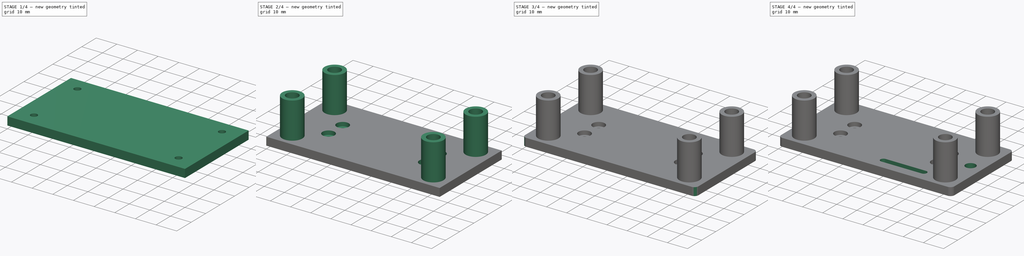
[diagram: build sequence overview — one tinted view per stage of 4, left to right]
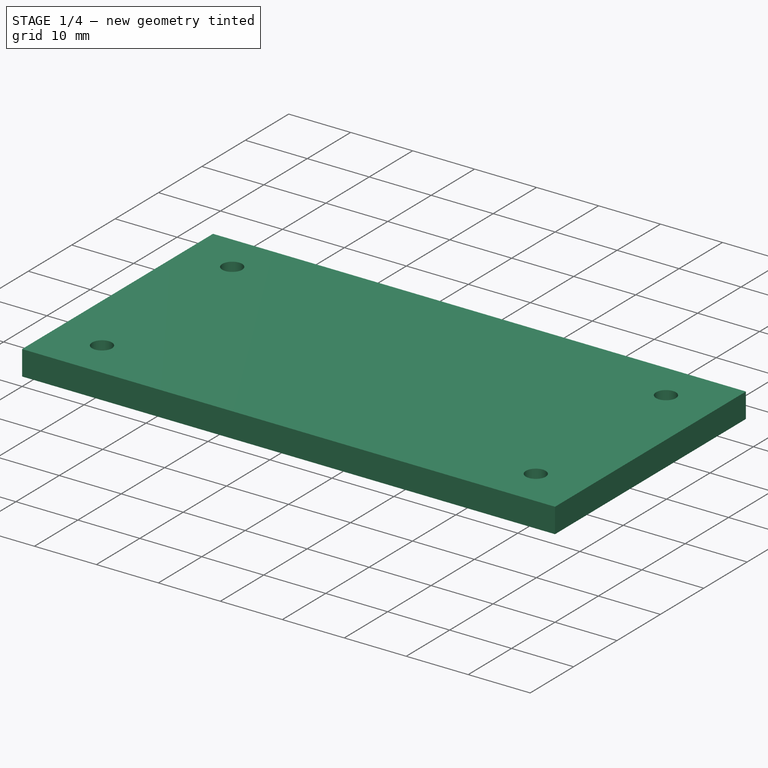
[diagram: stage 1 of 4 — iso view after this stage's code; geometry added in this stage tinted green]
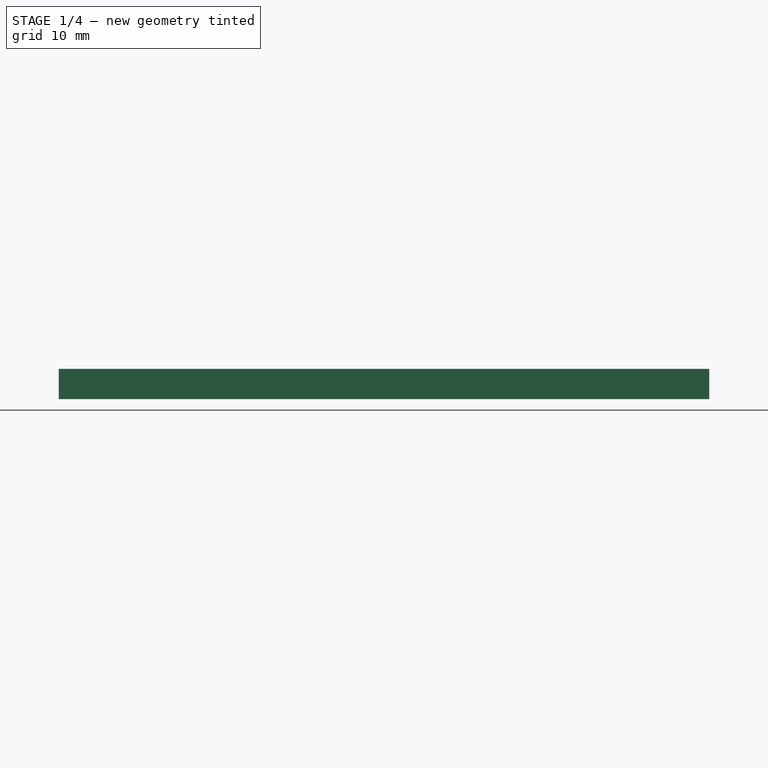
[diagram: stage 1 of 4 — front view after this stage's code; geometry added in this stage tinted green]
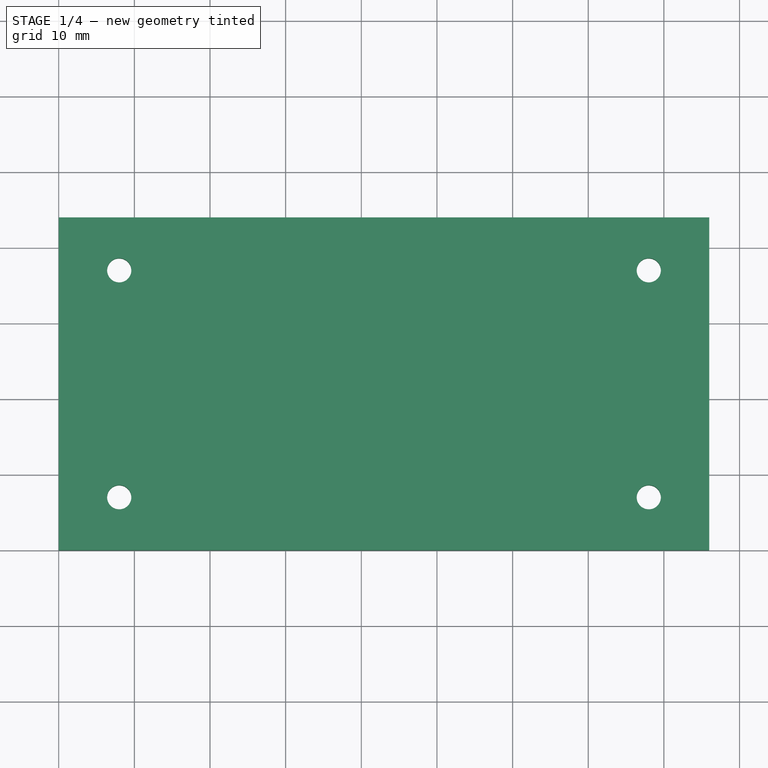
[diagram: stage 1 of 4 — top view after this stage's code; geometry added in this stage tinted green]
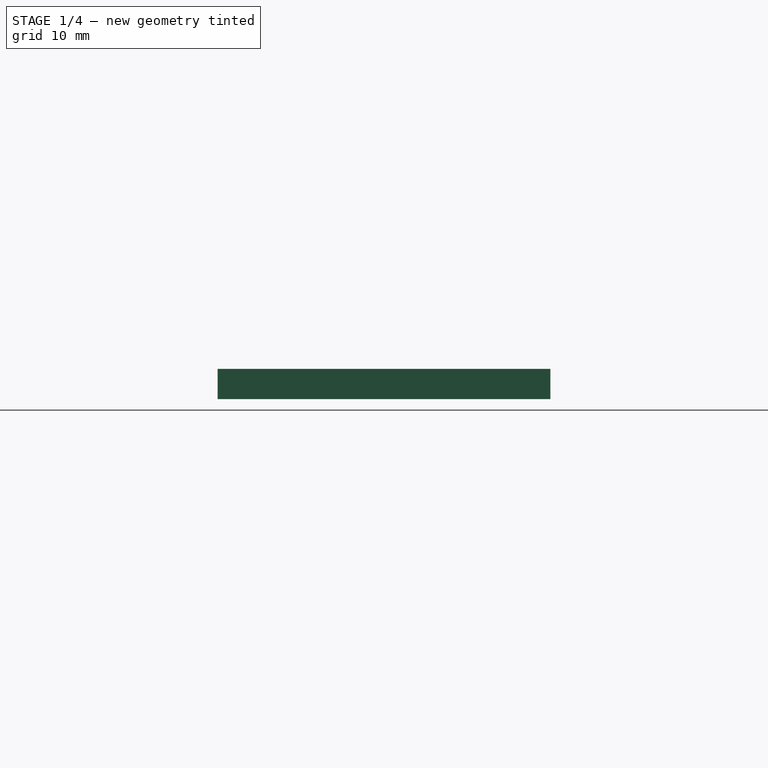
[diagram: stage 1 of 4 — right view after this stage's code; geometry added in this stage tinted green]
FCSTD DOCUMENT  (FreeCAD 0.16R6706 (Git))
Label: iROB-EA_Camara_Soporte_Robot
License: All rights reserved
LicenseURL: http://en.wikipedia.org/wiki/All_rights_reserved
objects: Sketcher::SketchObject×6, PartDesign::Pocket×4, PartDesign::Fillet×4, PartDesign::Pad×2
note: 22 computed .brp shape members not serialized (recipe doc carries the construction recipe); baked Part::Feature solids carry a one-line shape summary decoded from their .brp

FEATURE [Sketcher::SketchObject] Sketch  label="Base"
  sketch-geometry (4):
    g0: LineSegment StartX=0 StartY=44 StartZ=0 EndX=86 EndY=44 EndZ=0
    g1: LineSegment StartX=86 StartY=44 StartZ=0 EndX=86 EndY=0 EndZ=0
    g2: LineSegment StartX=86 StartY=0 StartZ=0 EndX=0 EndY=0 EndZ=0
    g3: LineSegment StartX=0 StartY=0 StartZ=0 EndX=0 EndY=44 EndZ=0
  constraints (11):
    c: Coincident(g0,g1)
    c: Coincident(g1,g2)
    c: Coincident(g2,g3)
    c: Coincident(g3,g0)
    c: Horizontal(g0)
    c: Horizontal(g2)
    c: Vertical(g1)
    c: Vertical(g3)
    c: DistanceY(g3,g3) = 44
    c: DistanceX(g2,g2) = 86
    c: Coincident(g2,g-1)
FEATURE [PartDesign::Pad] Pad
  Length = 4
  Length2 = 100
  Sketch = -> Sketch
  Type = 0
FEATURE [Sketcher::SketchObject] Sketch001  label="Taladros_Base"
  Placement = pos=(0,0,4) rot=(0,0,1;0rad)
  Support = -> Pad [Face6]
  sketch-geometry (4):
    g0: Circle CenterX=8 CenterY=37 CenterZ=0 NormalX=0 NormalY=0 NormalZ=1 Radius=1.6
    g1: Circle CenterX=8 CenterY=7 CenterZ=0 NormalX=0 NormalY=0 NormalZ=1 Radius=1.6
    g2: Circle CenterX=78 CenterY=37 CenterZ=0 NormalX=0 NormalY=0 NormalZ=1 Radius=1.6
    g3: Circle CenterX=78 CenterY=7 CenterZ=0 NormalX=0 NormalY=0 NormalZ=1 Radius=1.6
  constraints (12):
    c: Radius(g0) = 1.6
    c: Radius(g1) = 1.6
    c: DistanceX(g0,g1) = 0
    c: DistanceY(g1,g0) = 30
    c: Radius(g2) = 1.6
    c: Radius(g3) = 1.6
    c: DistanceY(g2,g0) = 0
    c: DistanceX(g3,g2) = 0
    c: DistanceX(g0,g2) = 70
    c: DistanceY(g1,g3) = 0
    c: DistanceY(g-1,g0) = 37
    c: DistanceX(g-1,g0) = 8
FEATURE [PartDesign::Pocket] Pocket
  Length = 5
  Sketch = -> Sketch001
  Type = 0
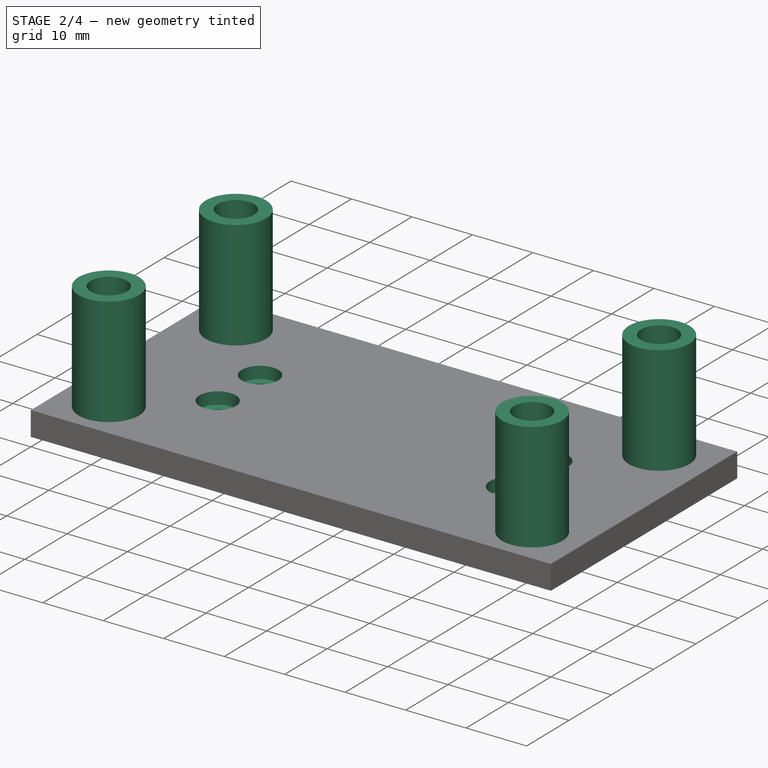
[diagram: stage 2 of 4 — iso view after this stage's code; geometry added in this stage tinted green]
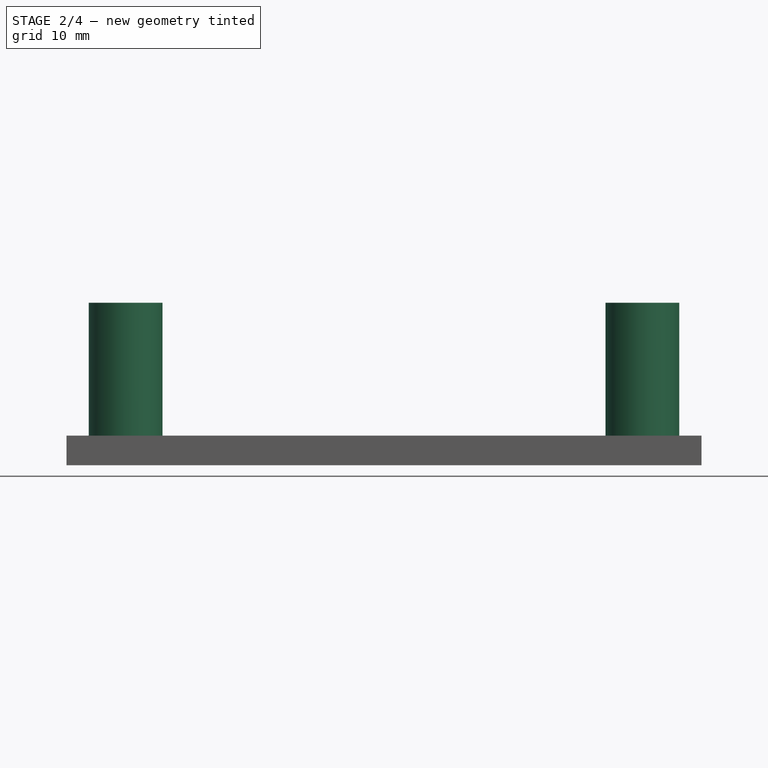
[diagram: stage 2 of 4 — front view after this stage's code; geometry added in this stage tinted green]
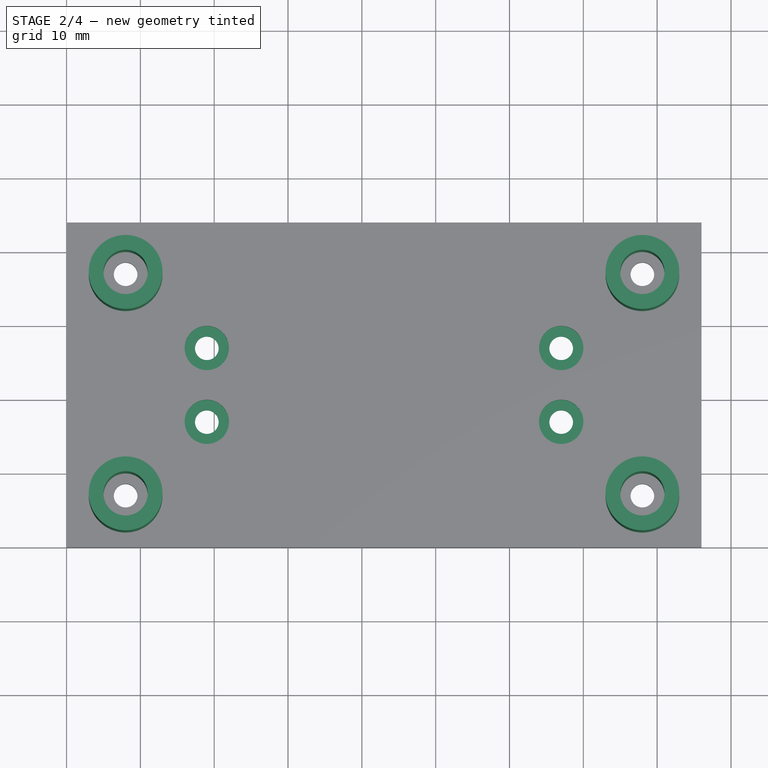
[diagram: stage 2 of 4 — top view after this stage's code; geometry added in this stage tinted green]
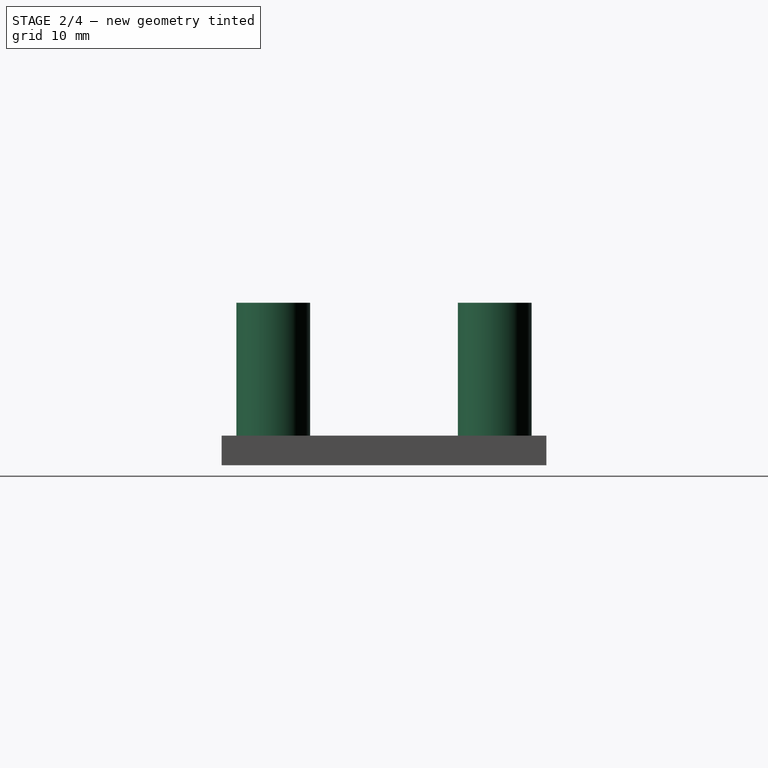
[diagram: stage 2 of 4 — right view after this stage's code; geometry added in this stage tinted green]
FEATURE [Sketcher::SketchObject] Sketch002  label="Taladros_Base_Contorno"
  Placement = pos=(0,0,4) rot=(0,0,1;0rad)
  Support = -> Pocket [Face5]
  sketch-geometry (8):
    g0: Circle CenterX=8 CenterY=7 CenterZ=0 NormalX=0 NormalY=0 NormalZ=1 Radius=3
    g1: Circle CenterX=8 CenterY=7 CenterZ=0 NormalX=0 NormalY=0 NormalZ=1 Radius=5
    g2: Circle CenterX=8 CenterY=37 CenterZ=0 NormalX=0 NormalY=0 NormalZ=1 Radius=3
    g3: Circle CenterX=8 CenterY=37 CenterZ=0 NormalX=0 NormalY=0 NormalZ=1 Radius=5
    g4: Circle CenterX=78 CenterY=37 CenterZ=0 NormalX=0 NormalY=0 NormalZ=1 Radius=3
    g5: Circle CenterX=78 CenterY=37 CenterZ=0 NormalX=0 NormalY=0 NormalZ=1 Radius=5
    g6: Circle CenterX=78 CenterY=7 CenterZ=0 NormalX=0 NormalY=0 NormalZ=1 Radius=3
    g7: Circle CenterX=78 CenterY=7 CenterZ=0 NormalX=0 NormalY=0 NormalZ=1 Radius=5
  constraints (20):
    c: Radius(g0) = 3
    c: Radius(g1) = 5
    c: Coincident(g1,g0)
    c: Radius(g2) = 3
    c: Radius(g3) = 5
    c: Coincident(g2,g3)
    c: DistanceX(g2,g0) = 0
    c: DistanceY(g0,g2) = 30
    c: Radius(g4) = 3
    c: Radius(g5) = 5
    c: Coincident(g5,g4)
    c: Radius(g6) = 3
    c: Radius(g7) = 5
    c: Coincident(g6,g7)
    c: DistanceX(g6,g4) = 0
    c: DistanceY(g6,g0) = 0
    c: DistanceY(g6,g4) = 30
    c: DistanceX(g0,g6) = 70
    c: DistanceX(g-1,g0) = 8
    c: DistanceY(g-1,g2) = 37
FEATURE [PartDesign::Pad] Pad001
  Length = 18
  Length2 = 100
  Sketch = -> Sketch002
  Type = 0
FEATURE [Sketcher::SketchObject] Sketch003  label="Taladros_Servo_1"
  Placement = pos=(0,0,0) rot=(1,0,0;3.14159rad)
  Support = -> Pad001 [Face4]
  sketch-geometry (4):
    g0: Circle CenterX=19 CenterY=-17 CenterZ=0 NormalX=0 NormalY=0 NormalZ=1 Radius=1.6
    g1: Circle CenterX=67 CenterY=-17 CenterZ=0 NormalX=0 NormalY=0 NormalZ=1 Radius=1.6
    g2: Circle CenterX=67 CenterY=-27 CenterZ=0 NormalX=0 NormalY=0 NormalZ=1 Radius=1.6
    g3: Circle CenterX=19 CenterY=-27 CenterZ=0 NormalX=0 NormalY=0 NormalZ=1 Radius=1.6
  constraints (12):
    c: Radius(g0) = 1.6
    c: Radius(g1) = 1.6
    c: DistanceY(g1,g0) = 0
    c: DistanceX(g0,g1) = 48
    c: Radius(g2) = 1.6
    c: Radius(g3) = 1.6
    c: DistanceY(g2,g3) = 0
    c: DistanceX(g3,g2) = 48
    c: DistanceY(g2,g1) = 10
    c: DistanceX(g0,g3) = 0
    c: DistanceY(g0,g-1) = 17
    c: DistanceX(g-1,g0) = 19
FEATURE [PartDesign::Pocket] Pocket001
  Length = 5
  Sketch = -> Sketch003
  Type = 0
FEATURE [Sketcher::SketchObject] Sketch004  label="Taladros_Servo_2"
  Placement = pos=(0,0,4) rot=(0,0,1;0rad)
  Support = -> Pocket001 [Face5]
  sketch-geometry (4):
    g0: Circle CenterX=19 CenterY=27 CenterZ=0 NormalX=0 NormalY=0 NormalZ=1 Radius=3
    g1: Circle CenterX=19 CenterY=17 CenterZ=0 NormalX=0 NormalY=0 NormalZ=1 Radius=3
    g2: Circle CenterX=67 CenterY=27 CenterZ=0 NormalX=0 NormalY=0 NormalZ=1 Radius=3
    g3: Circle CenterX=67 CenterY=17 CenterZ=0 NormalX=0 NormalY=0 NormalZ=1 Radius=3
  constraints (12):
    c: Radius(g0) = 3
    c: Radius(g1) = 3
    c: DistanceX(g1,g0) = 0
    c: DistanceY(g1,g0) = 10
    c: Radius(g3) = 3
    c: Radius(g2) = 3
    c: DistanceX(g2,g3) = 0
    c: DistanceY(g2,g0) = 0
    c: DistanceX(g0,g2) = 48
    c: DistanceY(g3,g2) = 10
    c: DistanceX(g-1,g1) = 19
    c: DistanceY(g-1,g1) = 17
FEATURE [PartDesign::Pocket] Pocket002
  Length = 2
  Sketch = -> Sketch004
  Type = 0
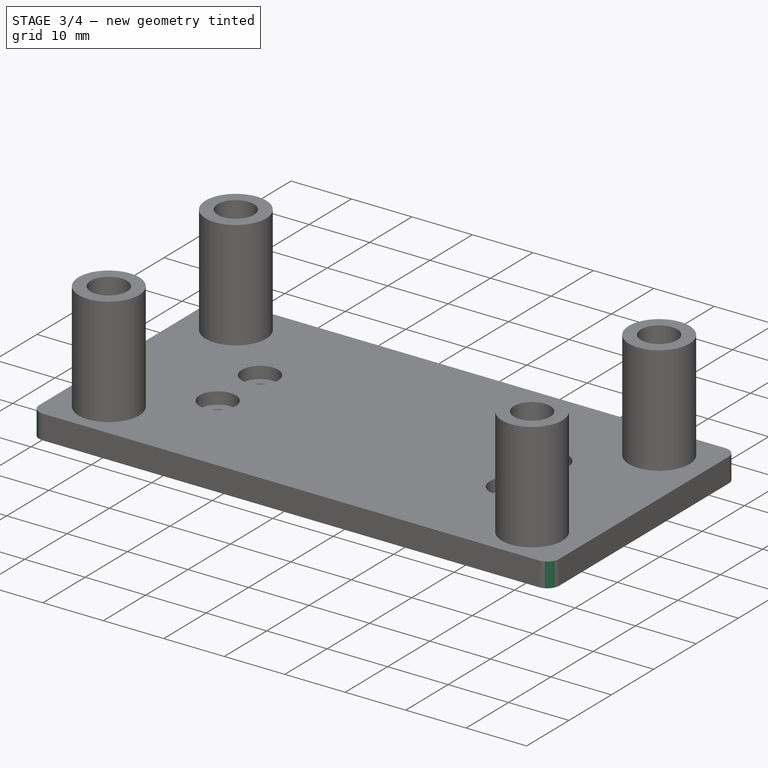
[diagram: stage 3 of 4 — iso view after this stage's code; geometry added in this stage tinted green]
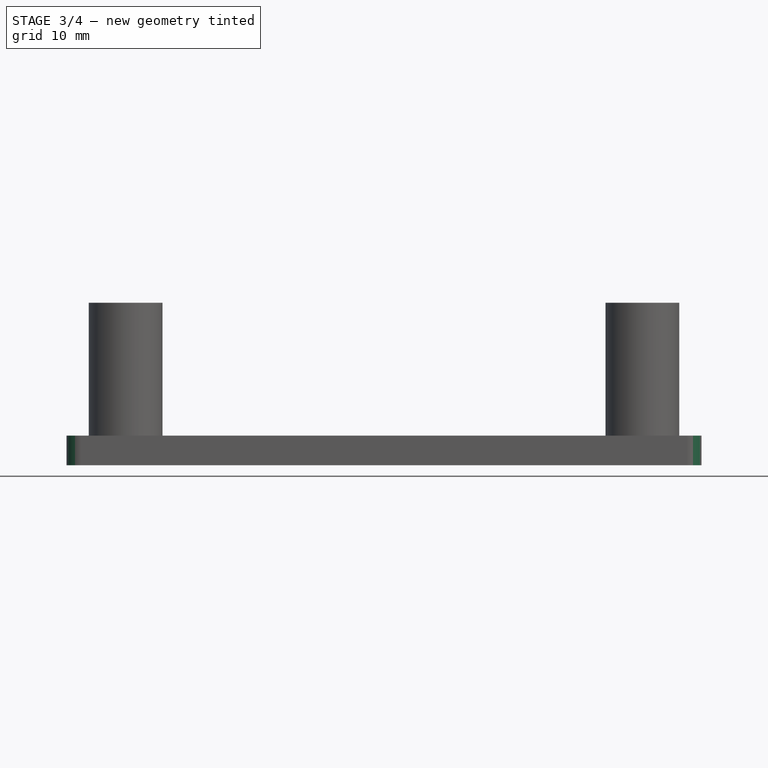
[diagram: stage 3 of 4 — front view after this stage's code; geometry added in this stage tinted green]
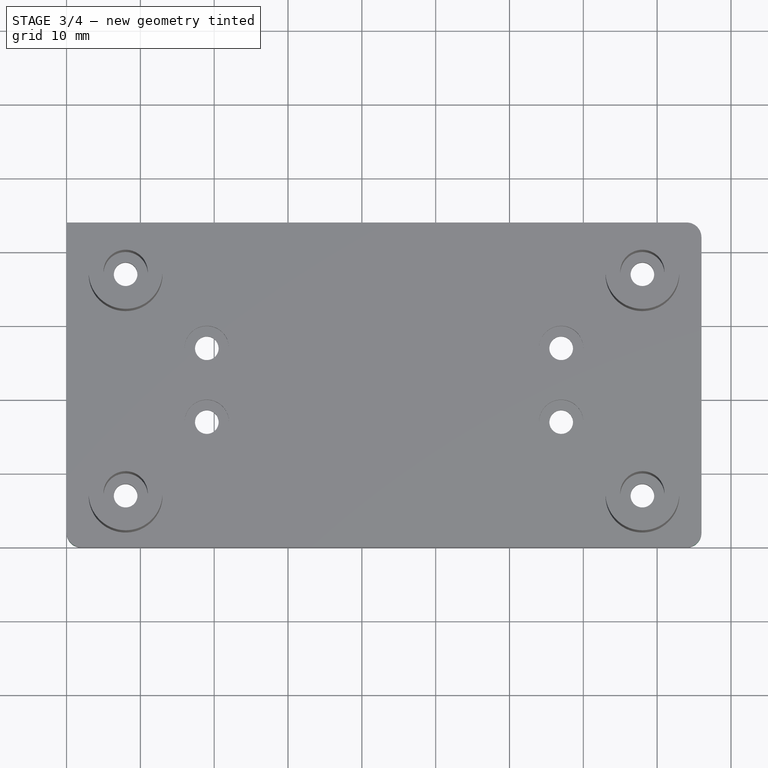
[diagram: stage 3 of 4 — top view after this stage's code; geometry added in this stage tinted green]
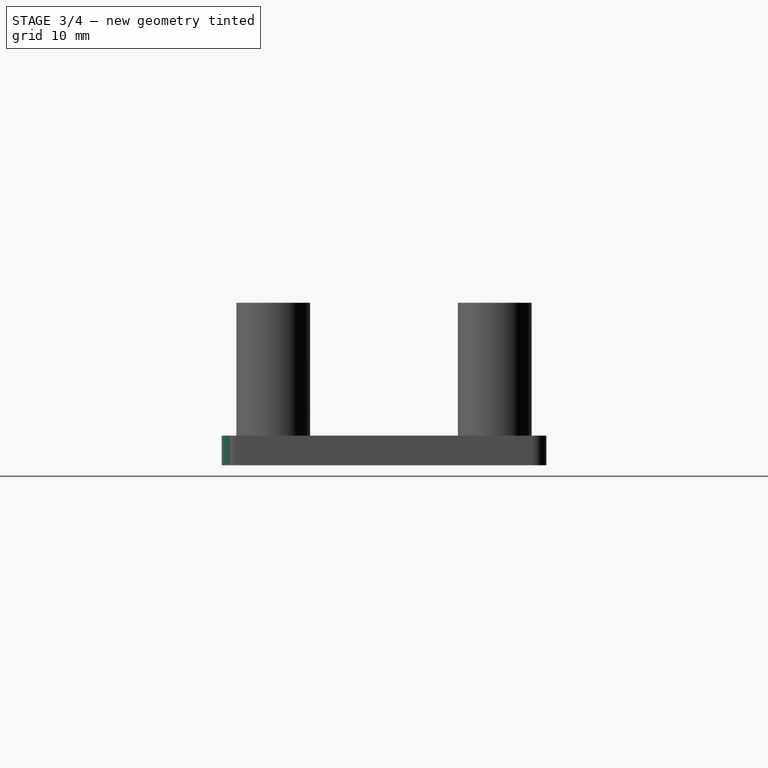
[diagram: stage 3 of 4 — right view after this stage's code; geometry added in this stage tinted green]
FEATURE [PartDesign::Fillet] Fillet
  Base = -> Pocket002 [Edge2]
  Radius = 2
FEATURE [PartDesign::Fillet] Fillet001
  Base = -> Fillet [Edge31]
  Radius = 2
FEATURE [PartDesign::Fillet] Fillet002
  Base = -> Fillet001 [Edge22]
  Radius = 2
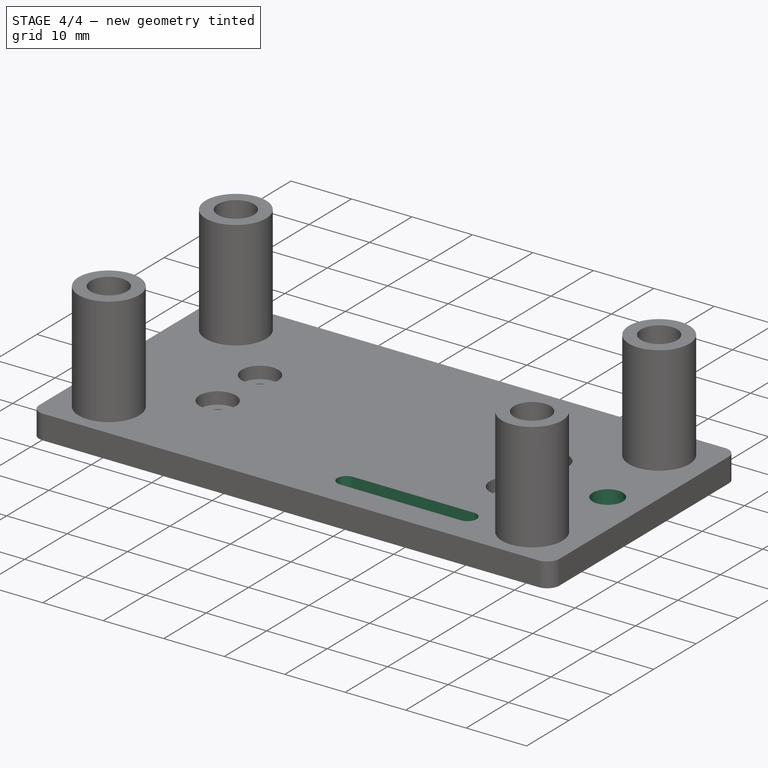
[diagram: stage 4 of 4 — iso view after this stage's code; geometry added in this stage tinted green]
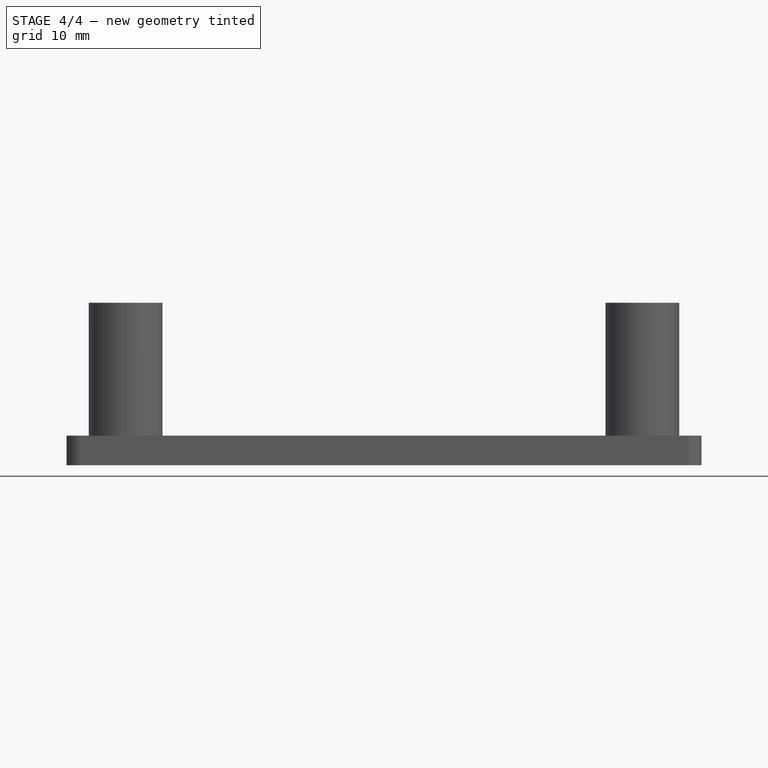
[diagram: stage 4 of 4 — front view after this stage's code; geometry added in this stage tinted green]
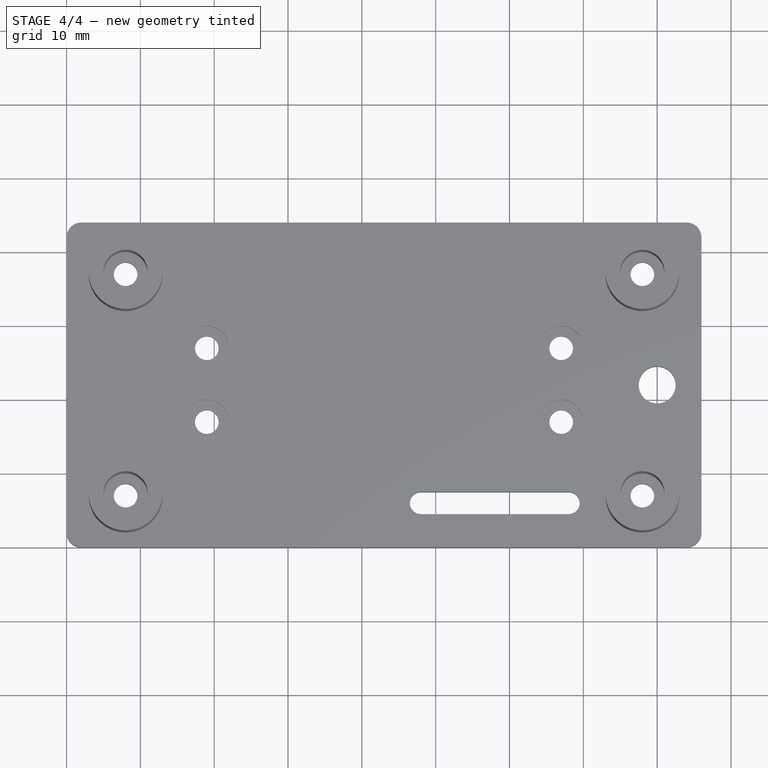
[diagram: stage 4 of 4 — top view after this stage's code; geometry added in this stage tinted green]
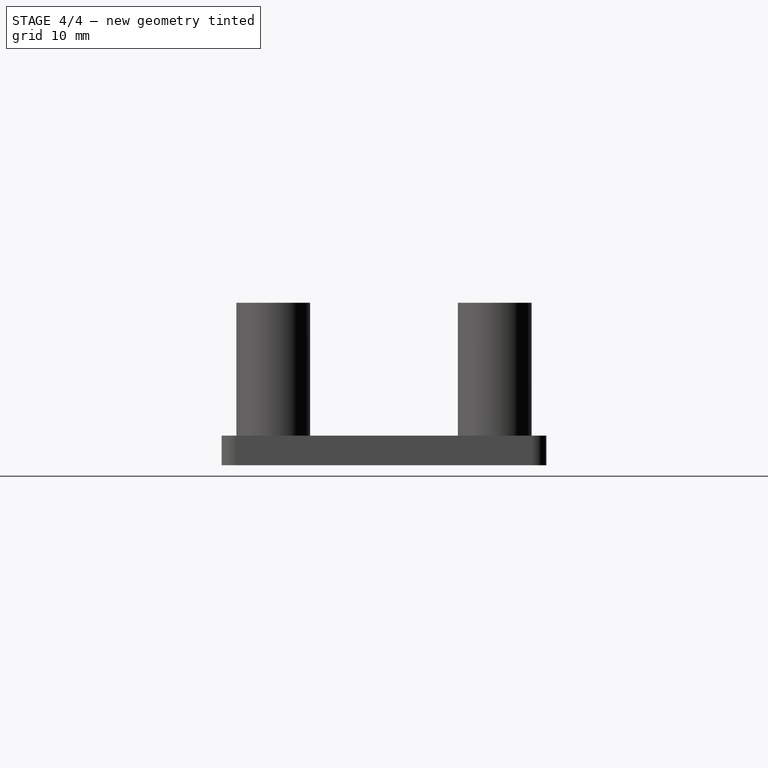
[diagram: stage 4 of 4 — right view after this stage's code; geometry added in this stage tinted green]
FEATURE [PartDesign::Fillet] Fillet003
  Base = -> Fillet002 [Edge23]
  Radius = 2
FEATURE [Sketcher::SketchObject] Sketch006  label="Ranuras_Cables"
  Placement = pos=(0,0,0) rot=(1,0,0;3.14159rad)
  Support = -> Fillet003 [Face1]
  sketch-geometry (5):
    g0: Circle CenterX=80 CenterY=-22 CenterZ=0 NormalX=0 NormalY=0 NormalZ=1 Radius=2.5
    g1: ArcOfCircle CenterX=48 CenterY=-6 CenterZ=0 NormalX=0 NormalY=0 NormalZ=1 Radius=1.5 StartAngle=1.5708 EndAngle=4.71239
    g2: ArcOfCircle CenterX=68 CenterY=-6 CenterZ=0 NormalX=0 NormalY=0 NormalZ=1 Radius=1.5 StartAngle=4.71239 EndAngle=7.85398
    g3: LineSegment StartX=48 StartY=-7.5 StartZ=0 EndX=68 EndY=-7.5 EndZ=0
    g4: LineSegment StartX=48 StartY=-4.5 StartZ=0 EndX=68 EndY=-4.5 EndZ=0
  constraints (13):
    c: Radius(g0) = 2.5
    c: DistanceY(g0,g-1) = 22
    c: DistanceX(g0,g-1) = -80
    c: Tangent(g1,g4) = 1.5708
    c: Tangent(g1,g3) = -1.5708
    c: Tangent(g3,g2) = -1.5708
    c: Tangent(g4,g2) = 1.5708
    c: Horizontal(g3)
    c: Equal(g1,g2)
    c: Radius(g2) = 1.5
    c: DistanceX(g3,g3) = 20
    c: DistanceX(g-1,g1) = 48
    c: DistanceY(g-1,g1) = -6
FEATURE [PartDesign::Pocket] Pocket003
  Length = 5
  Sketch = -> Sketch006
  Type = 0
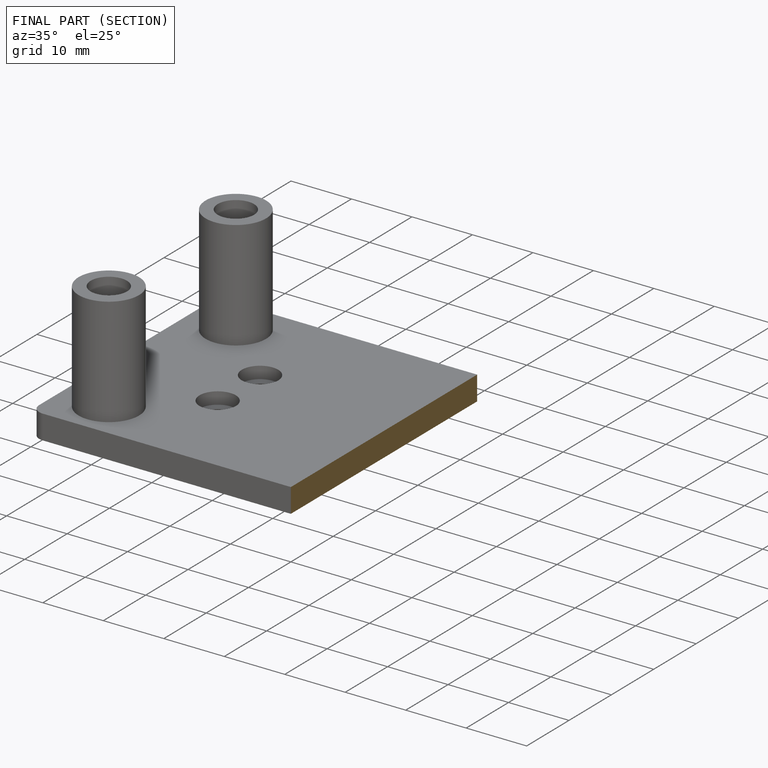
[diagram: finished part — half-section view (interior)]
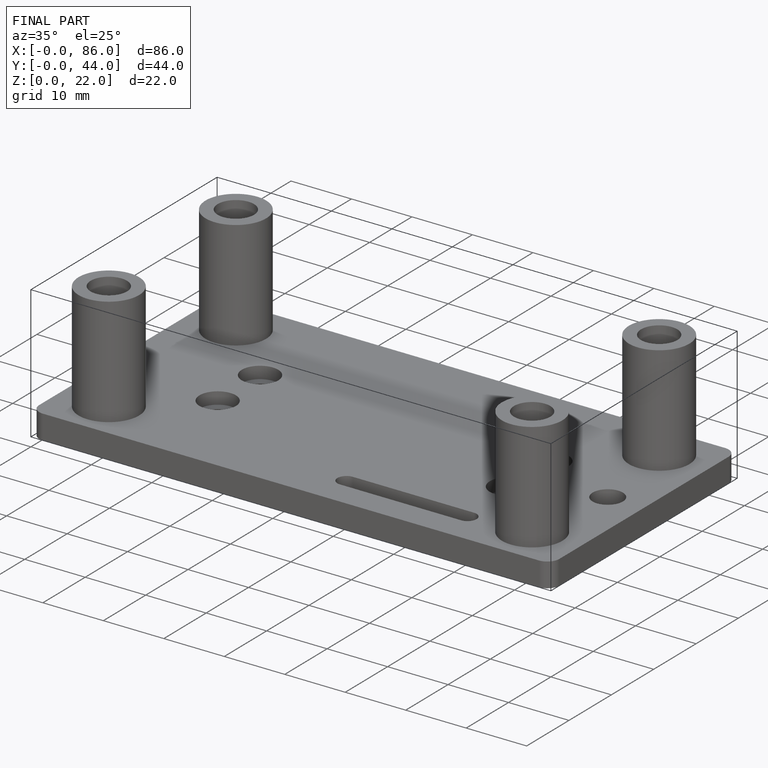
[diagram: finished part — iso view with bounding-box wireframe]
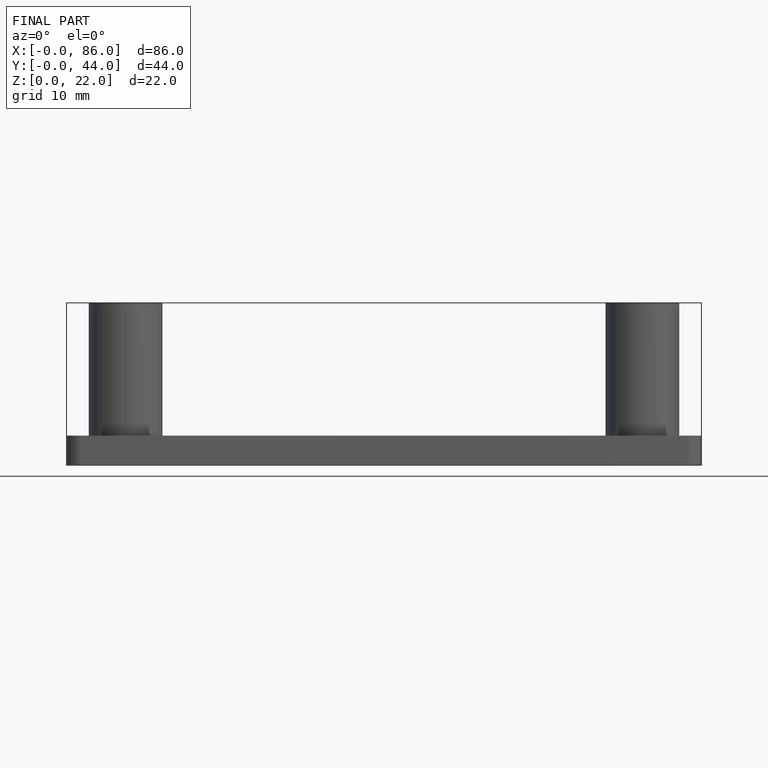
[diagram: finished part — front view with bounding-box wireframe]
